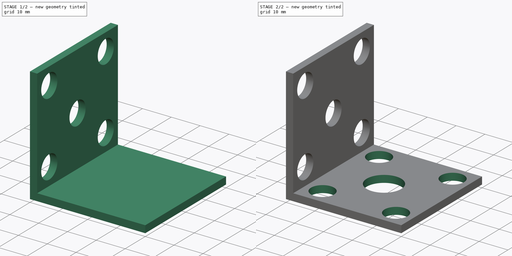
[diagram: build sequence overview — one tinted view per stage of 2, left to right]
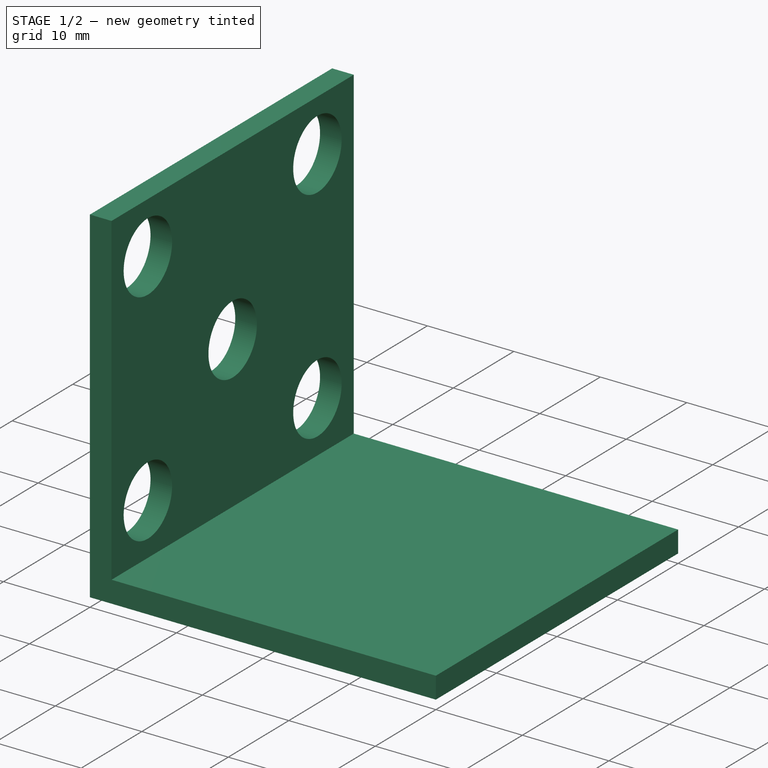
[diagram: stage 1 of 2 — iso view after this stage's code; geometry added in this stage tinted green]
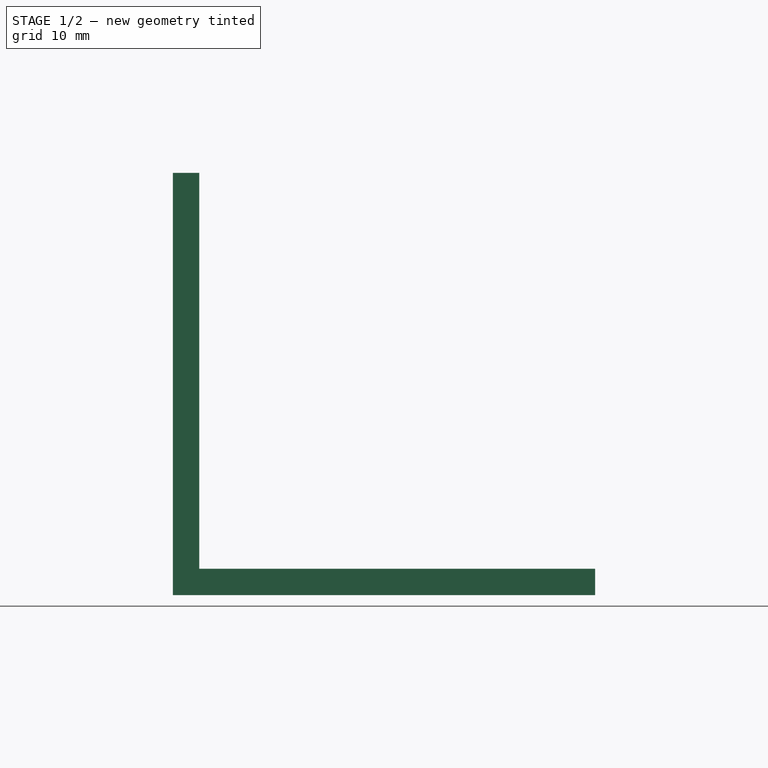
[diagram: stage 1 of 2 — front view after this stage's code; geometry added in this stage tinted green]
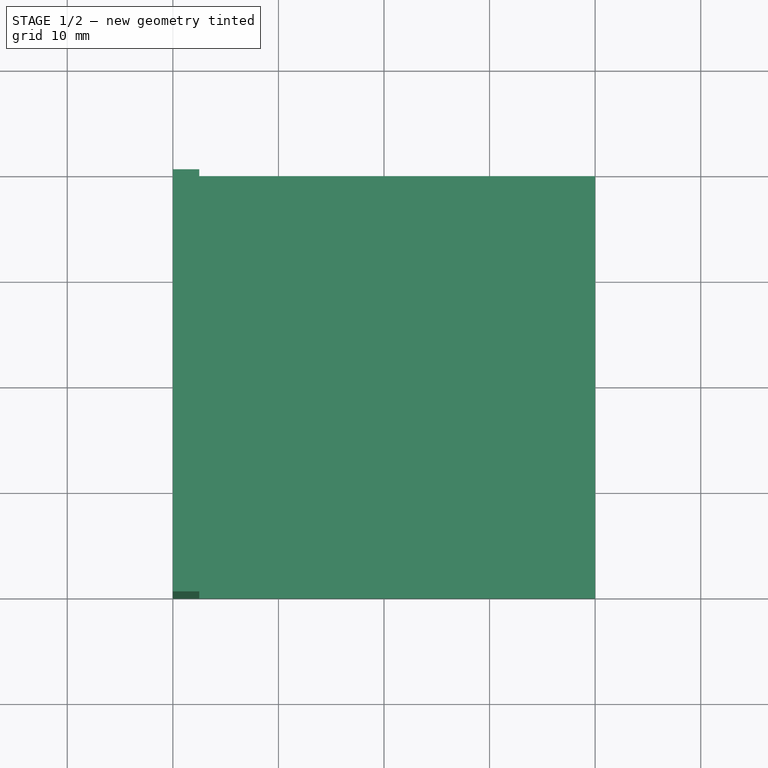
[diagram: stage 1 of 2 — top view after this stage's code; geometry added in this stage tinted green]
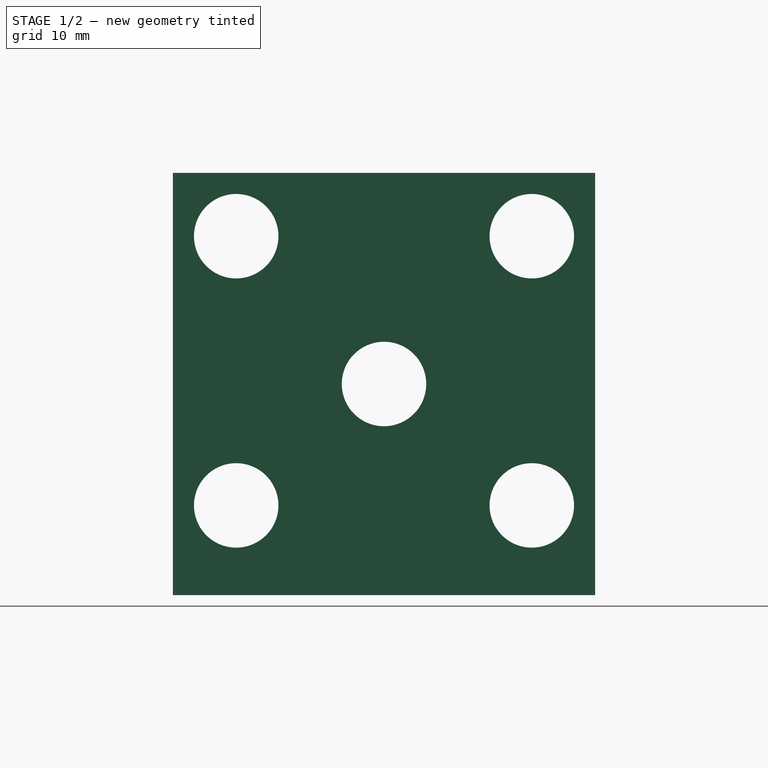
[diagram: stage 1 of 2 — right view after this stage's code; geometry added in this stage tinted green]
FCSTD DOCUMENT  (FreeCAD 0.18R16110 (Git))
Label: corner_12
License: All rights reserved
LicenseURL: http://en.wikipedia.org/wiki/All_rights_reserved
objects: Sketcher::SketchObject×3, PartDesign::Pocket×2, PartDesign::Pad×1, PartDesign::Body×1
note: 10 computed .brp shape members not serialized (recipe doc carries the construction recipe); baked Part::Feature solids carry a one-line shape summary decoded from their .brp

FEATURE [Sketcher::SketchObject] Sketch
  MapMode = 5
  Placement = pos=(0,0,0) rot=(1,0,0;1.5708rad)
  Support = -> [XZ_Plane]
  sketch-geometry (6):
    g0: LineSegment StartX=0 StartY=0 StartZ=0 EndX=0 EndY=40 EndZ=0
    g1: LineSegment StartX=0 StartY=40 StartZ=0 EndX=2.5 EndY=40 EndZ=0
    g2: LineSegment StartX=2.5 StartY=40 StartZ=0 EndX=2.5 EndY=2.5 EndZ=0
    g3: LineSegment StartX=2.5 StartY=2.5 StartZ=0 EndX=40 EndY=2.5 EndZ=0
    g4: LineSegment StartX=40 StartY=2.5 StartZ=0 EndX=40 EndY=0 EndZ=0
    g5: LineSegment StartX=40 StartY=0 StartZ=0 EndX=0 EndY=0 EndZ=0
  constraints (17):
    c: Coincident(g0,g1)
    c: Coincident(g1,g2)
    c: Coincident(g2,g3)
    c: Coincident(g3,g4)
    c: Coincident(g4,g5)
    c: Coincident(g5,g0)
    c: Coincident(g0,g-1)
    c: Vertical(g0)
    c: Vertical(g2)
    c: Horizontal(g5)
    c: Horizontal(g3)
    c: Horizontal(g1)
    c: Vertical(g4)
    c: DistanceY(g0,g0) = 40
    c: DistanceX(g0,g4) = 40
    c: DistanceY(g4,g4) = 2.5
    c: DistanceX(g1,g1) = 2.5
FEATURE [PartDesign::Pad] Pad
  Length = 40
  Length2 = 100
  Placement = pos=(0,0,0) rot=(1,0,0;1.5708rad)
  Profile = -> Sketch
  Type = 0
FEATURE [Sketcher::SketchObject] Sketch001
  ExternalGeometry = -> [Pad]
  MapMode = 5
  Placement = pos=(2.5,0,0) rot=(0.707107,0,0.707107;3.14159rad)
  Support = -> [Pad]
  sketch-geometry (5):
    g0: Circle CenterX=8.5 CenterY=34 CenterZ=0 NormalX=0 NormalY=0 NormalZ=1 AngleXU=0 Radius=4
    g1: Circle CenterX=34 CenterY=34 CenterZ=0 NormalX=0 NormalY=0 NormalZ=1 AngleXU=0 Radius=4
    g2: Circle CenterX=8.5 CenterY=6 CenterZ=0 NormalX=0 NormalY=0 NormalZ=1 AngleXU=0 Radius=4
    g3: Circle CenterX=34 CenterY=6 CenterZ=0 NormalX=0 NormalY=0 NormalZ=1 AngleXU=0 Radius=4
    g4: Circle CenterX=20 CenterY=20 CenterZ=0 NormalX=0 NormalY=0 NormalZ=1 AngleXU=0 Radius=4
  constraints (15):
    c: Radius(g0) = 4
    c: Radius(g1) = 4
    c: Radius(g4) = 4
    c: Radius(g2) = 4
    c: Radius(g3) = 4
    c: Distance(g0,g-3) = 6
    c: Distance(g0,g-4) = 6
    c: Distance(g1,g-5) = 6
    c: Distance(g1,g-4) = 6
    c: Distance(g2,g-3) = 6
    c: DistanceY(g-1,g2) = 6
    c: Distance(g3,g-5) = 6
    c: DistanceY(g-1,g3) = 6
    c: DistanceY(g-1,g4) = 20
    c: Distance(g4,g-5) = 20
FEATURE [PartDesign::Pocket] Pocket
  BaseFeature = -> Pad
  Length = 5
  Length2 = 100
  Placement = pos=(0,0,0) rot=(1,0,0;1.5708rad)
  Profile = -> Sketch001
  Type = 1
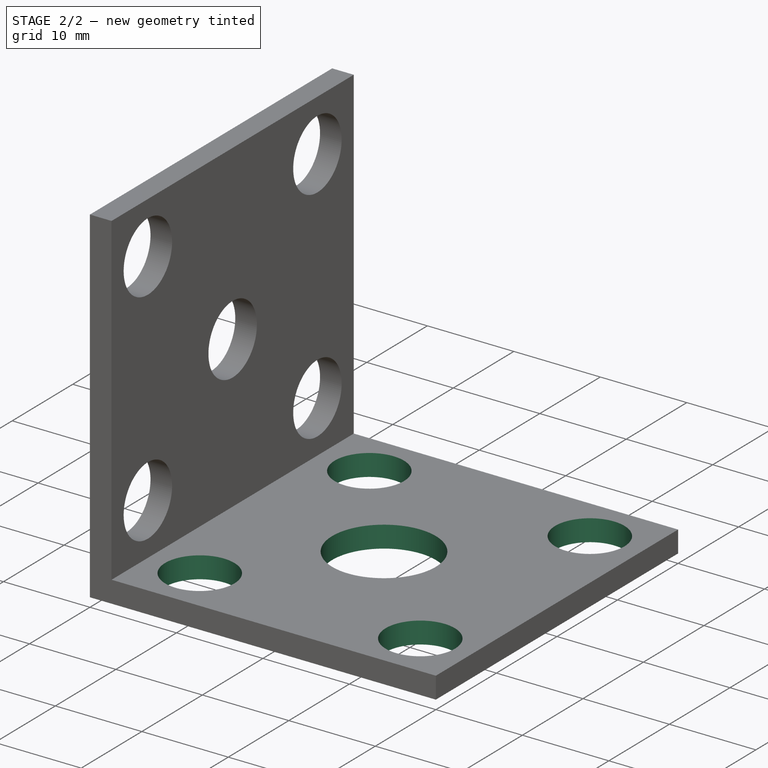
[diagram: stage 2 of 2 — iso view after this stage's code; geometry added in this stage tinted green]
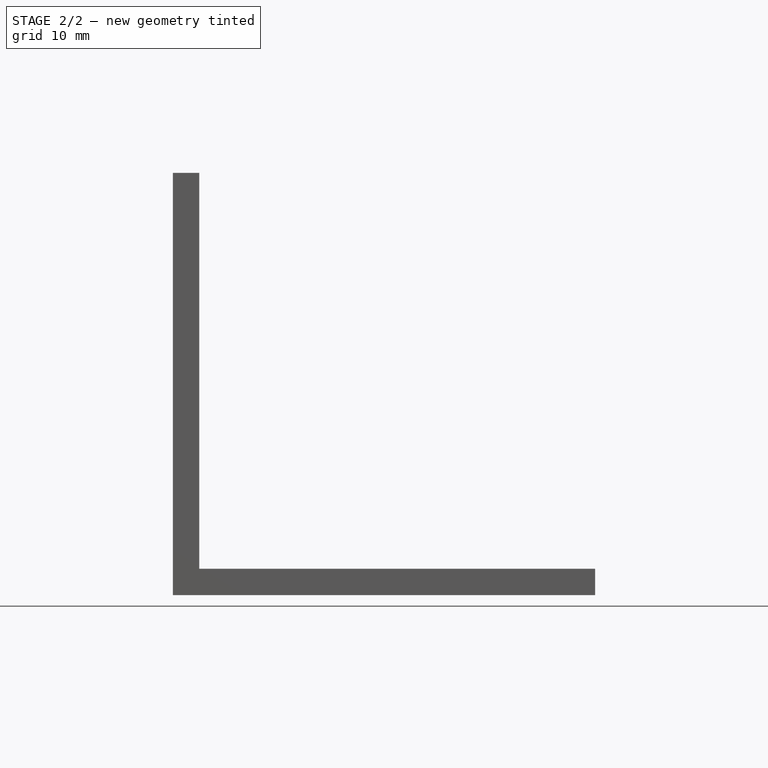
[diagram: stage 2 of 2 — front view after this stage's code; geometry added in this stage tinted green]
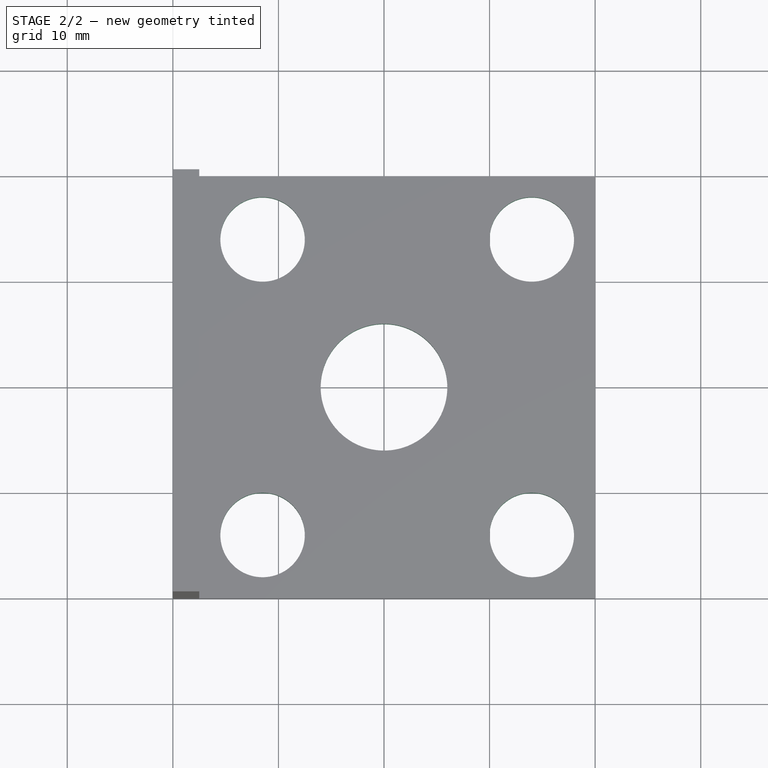
[diagram: stage 2 of 2 — top view after this stage's code; geometry added in this stage tinted green]
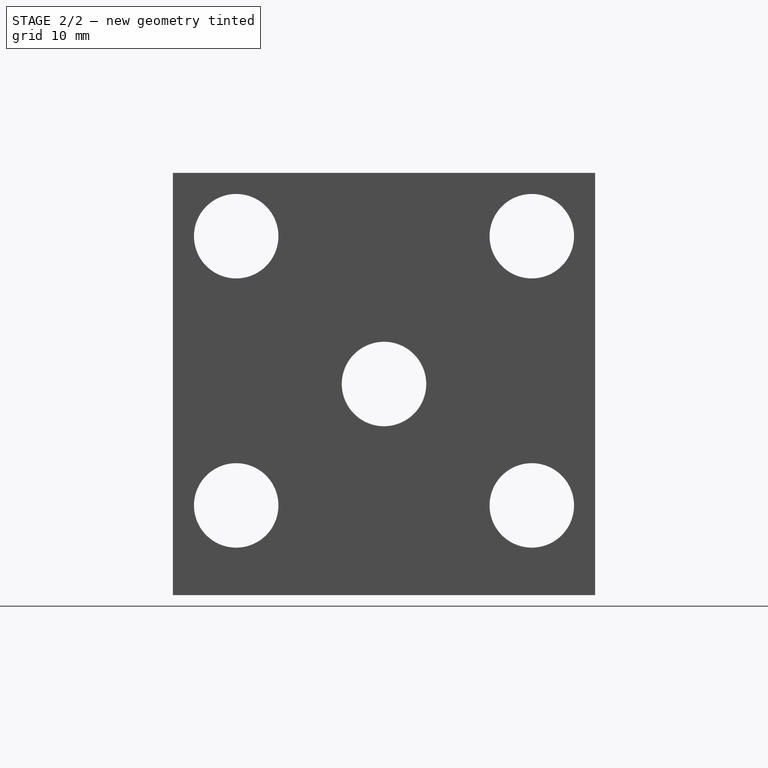
[diagram: stage 2 of 2 — right view after this stage's code; geometry added in this stage tinted green]
FEATURE [Sketcher::SketchObject] Sketch002
  ExternalGeometry = -> [Pocket]
  MapMode = 5
  Placement = pos=(0,1.7e-15,2.5) rot=(0,0,1;3.14159rad)
  Support = -> [Pocket]
  sketch-geometry (5):
    g0: Circle CenterX=-8.5 CenterY=6 CenterZ=0 NormalX=0 NormalY=0 NormalZ=1 AngleXU=0 Radius=4
    g1: Circle CenterX=-34 CenterY=6 CenterZ=0 NormalX=0 NormalY=0 NormalZ=1 AngleXU=0 Radius=4
    g2: Circle CenterX=-8.5 CenterY=34 CenterZ=0 NormalX=0 NormalY=0 NormalZ=1 AngleXU=0 Radius=4
    g3: Circle CenterX=-34 CenterY=34 CenterZ=0 NormalX=0 NormalY=0 NormalZ=1 AngleXU=0 Radius=4
    g4: Circle CenterX=-20 CenterY=20 CenterZ=0 NormalX=0 NormalY=0 NormalZ=1 AngleXU=0 Radius=6
  constraints (15):
    c: DistanceY(g-1,g0) = 6
    c: Radius(g0) = 4
    c: Radius(g1) = 4
    c: Radius(g2) = 4
    c: Radius(g3) = 4
    c: Radius(g4) = 6
    c: DistanceY(g-1,g1) = 6
    c: Distance(g0,g-3) = 6
    c: Distance(g2,g-3) = 6
    c: Distance(g2,g-4) = 6
    c: Distance(g3,g-4) = 6
    c: DistanceX(g-2,g4) = -20
    c: Distance(g1,g-5) = 6
    c: Distance(g3,g-5) = 6
    c: Distance(g4,g-4) = 20
FEATURE [PartDesign::Pocket] Pocket001
  BaseFeature = -> Pocket
  Length = 5
  Length2 = 100
  Placement = pos=(0,0,0) rot=(1,0,0;1.5708rad)
  Profile = -> Sketch002
  Type = 1
FEATURE [PartDesign::Body] Body
  Group = -> [Sketch,Pad,Sketch001,Pocket,Sketch002,Pocket001]
  Origin = -> Origin
  Tip = -> Pocket001
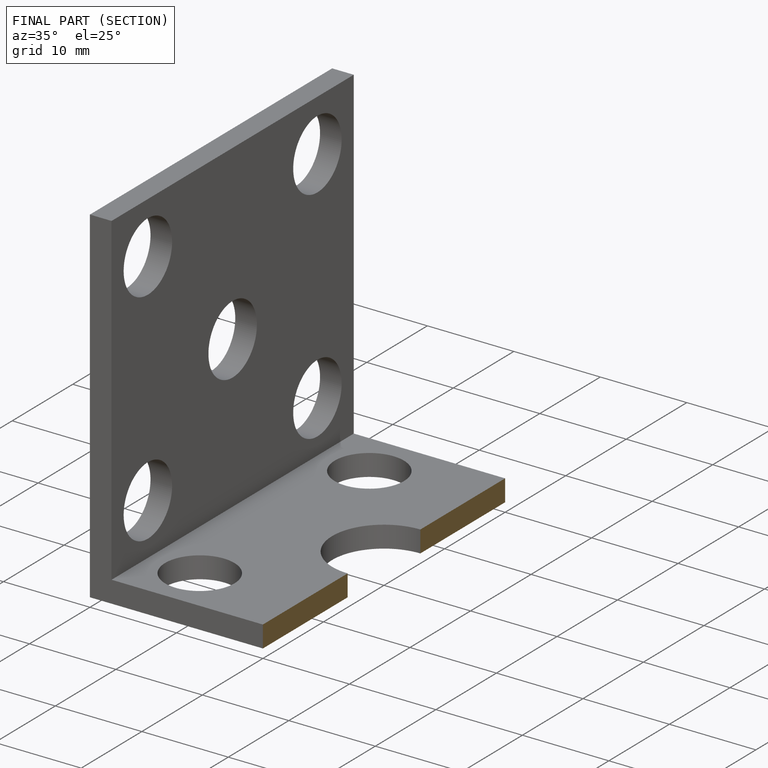
[diagram: finished part — half-section view (interior)]
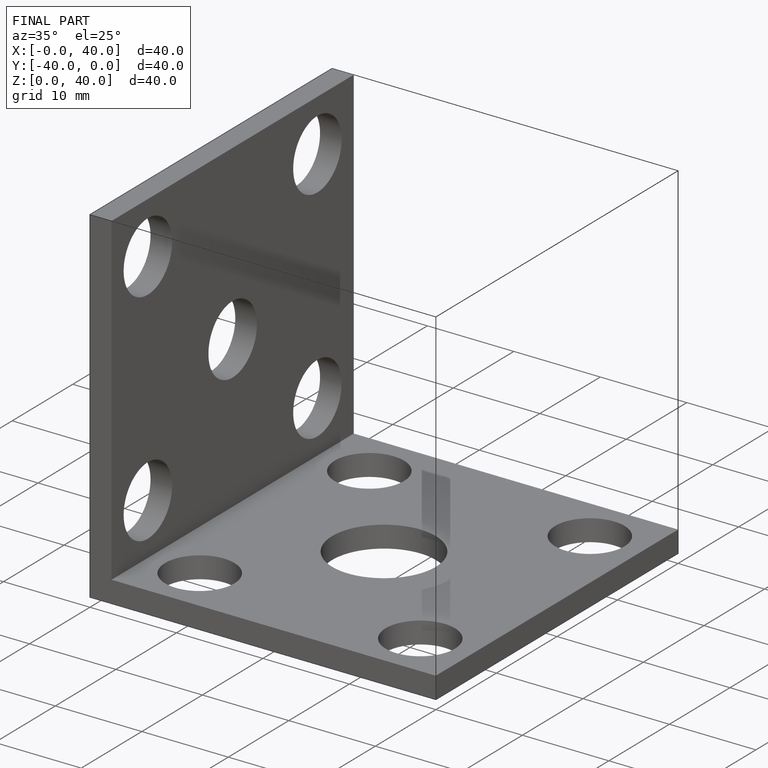
[diagram: finished part — iso view with bounding-box wireframe]
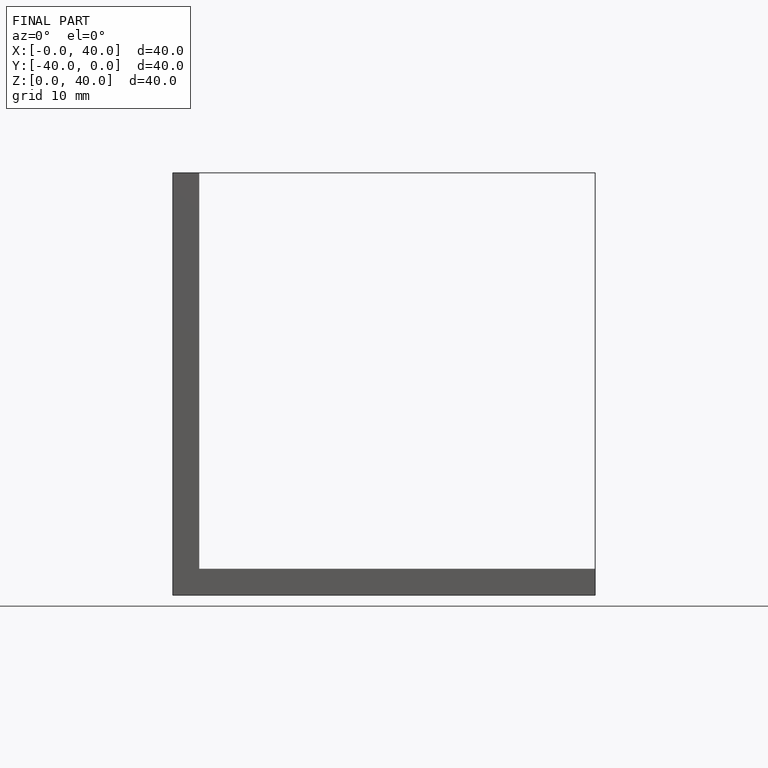
[diagram: finished part — front view with bounding-box wireframe]
